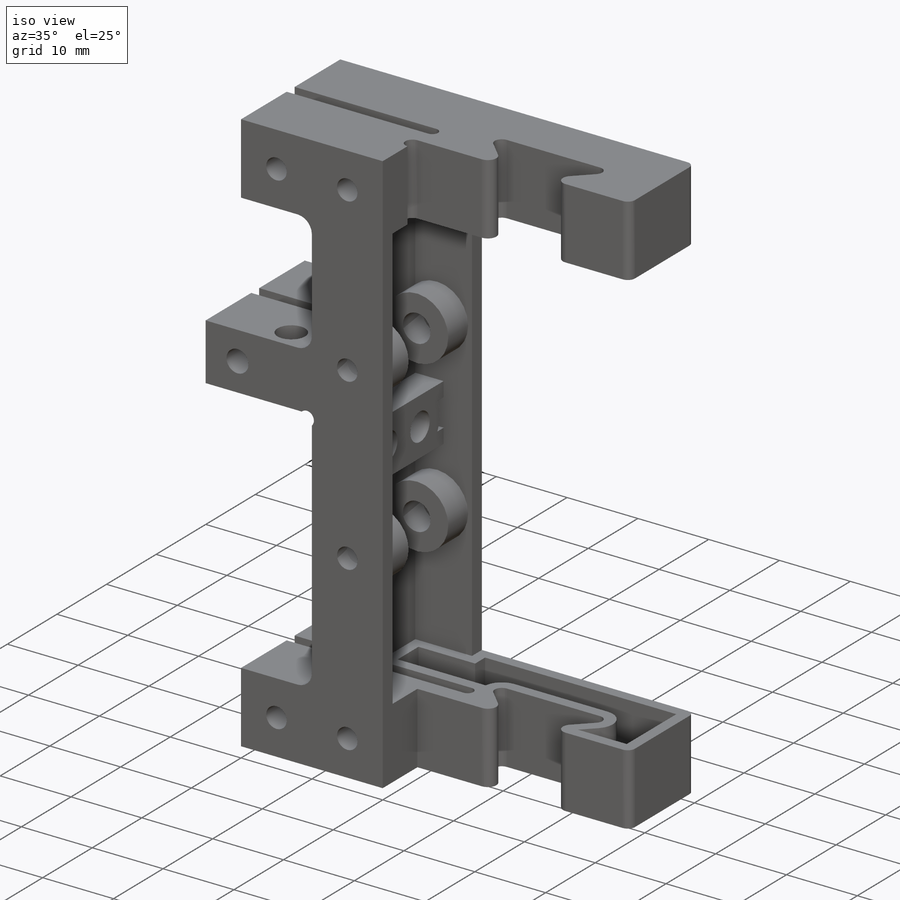
[diagram: iso view]
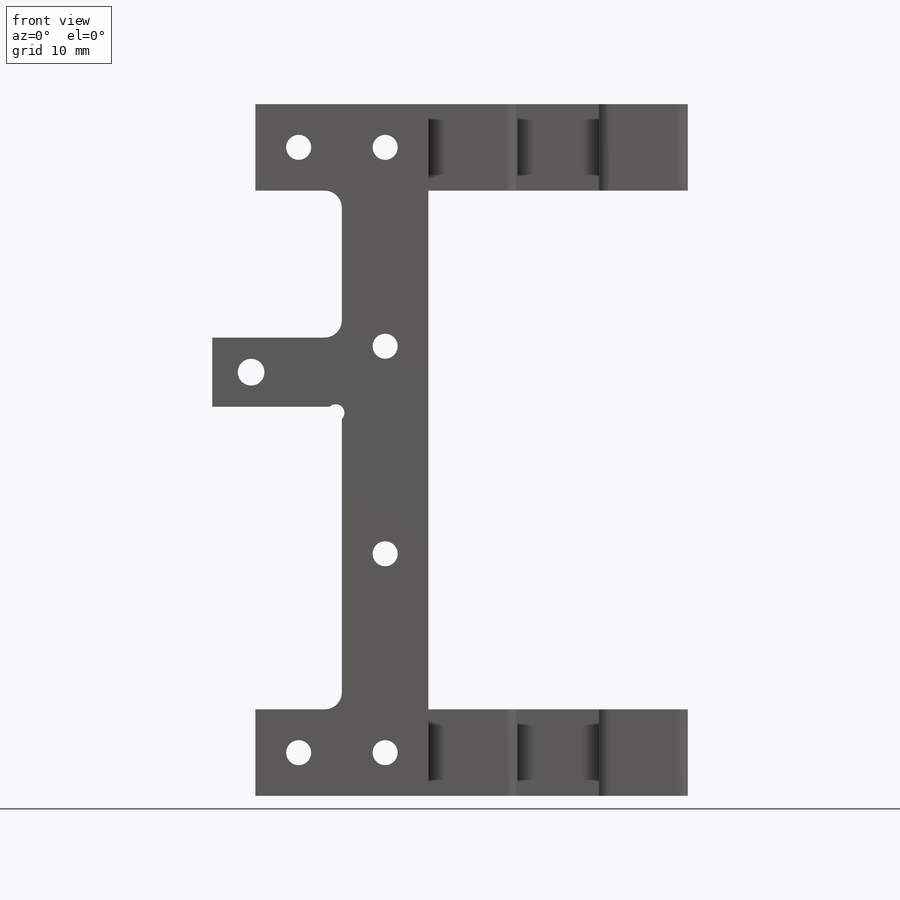
[diagram: front view]
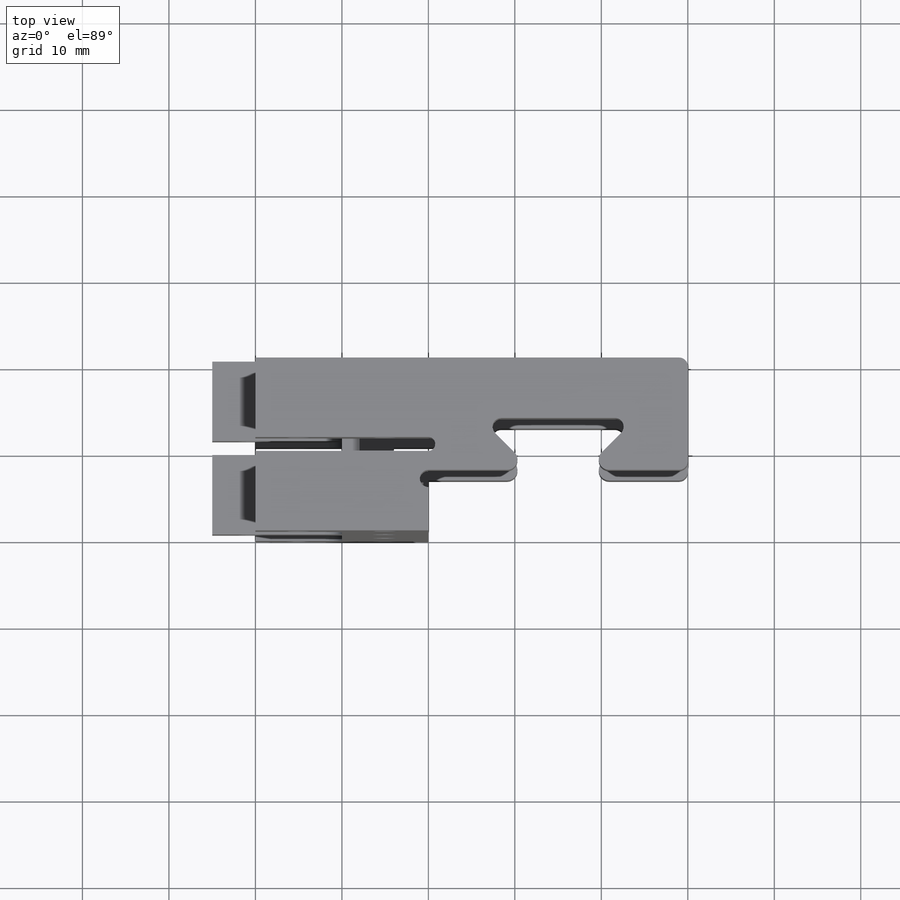
[diagram: top view]
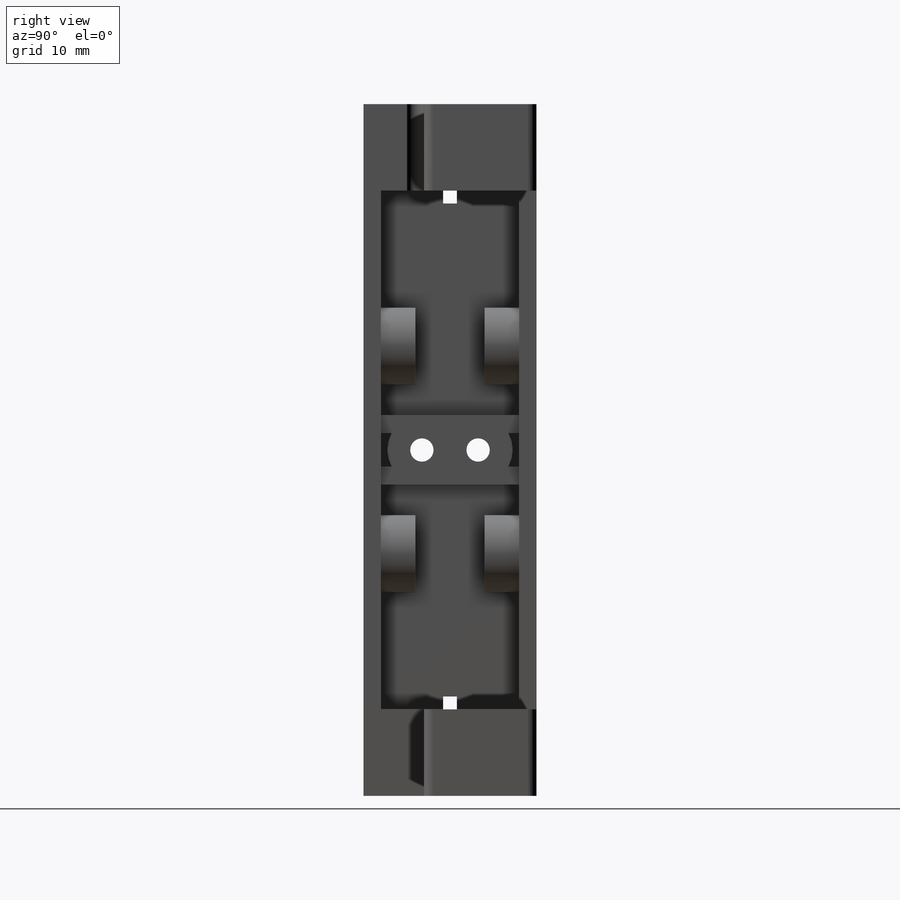
[diagram: right view]
SOLIDWORKS PART (.sldprt)
format: sldprt  version: not decoded by parser v0  size: 851,968 bytes
history: native  units: mm
features: sketch x26, cut_extrude x13, extrude x7, mirror x5, hole x3, plane x3, fillet x3, material x1 (+12 scaffold rows collapsed)
feature tree (73):
  scaffold x12  (default folders/planes/origin — collapsed)
  material  "ABS"
  sketch  "Sketch1"  dims[D1=20.0mm D2=10.0mm]
  extrude  "Boss-Extrude1"  Depth=10mm
  hole  "M2.5 Clearance Hole1"  Diameter=2.9mm Depth=20.00005mm
  sketch  "Sketch3"  dims[c1.D1=5.0mm c1.D2=10.0mm c2.D1=10.0mm]
  sketch  "Sketch2"  dims[hole-wizard template sketch: 60 standard entries collapsed; hole parameters kept: c18.Thru Hole Depth=~20.00005mm]
  sketch  "Sketch6"  dims[D1=60.0mm]
  extrude  "Boss-Extrude2"  [1 undecoded]
  plane  "Plane1"
  mirror  "Mirror1"
  sketch  "Sketch4"
  cut_extrude  "Cut-Extrude1"  Depth=0.8mm
  sketch  "Sketch7"  dims[D1=10.0mm D2=25.0mm D3=8.0mm D4=15.0mm]
  extrude  "Boss-Extrude3"  [1 undecoded]
  sketch  "Sketch8"  dims[D1=10.0mm D2=2.0mm]
  cut_extrude  "Cut-Extrude3"  Depth=8mm
  sketch  "Sketch9"  dims[D1=2.0mm]
  cut_extrude  "Cut-Extrude4"  Depth=35mm
  fillet  "Fillet1"  Radius=2mm
  sketch  "Sketch11"  dims[D1=3.9mm D2=14.0mm D3=5.0mm]
  cut_extrude  "Cut-Extrude6"  Depth=4mm
  sketch  "Sketch12"  dims[D1=2.7mm]
  cut_extrude  "Cut-Extrude7"  Depth=9mm
  sketch  "Sketch13"  dims[c1.D2=~3.059176mm c1.D3=2.7mm c1.D1=5.0mm c2.D2=6.5mm]
  cut_extrude  "Cut-Extrude8"  Depth=9mm
  sketch  "Sketch14"  dims[D1=3.9mm D2=8.0mm]
  extrude  "Boss-Extrude4"  Depth=4mm
  mirror  "Mirror2"
  sketch  "Sketch15"
  extrude  "Boss-Extrude5"  [1 undecoded]
  hole  "M2.5 Clearance Hole2"  Diameter=2.9mm Depth=20mm
  sketch  "Sketch17"  dims[D1=23.0mm]
  sketch  "Sketch16"  dims[hole-wizard template sketch: 47 standard entries collapsed; hole parameters kept: c15.Hole Depth=20.0mm c15.D3=~14.816244mm c15.Drill Angle=180.0deg]
  sketch  "Sketch19"  dims[D1=3.9mm D2=2.5mm]
  extrude  "Boss-Extrude6"  Depth=4mm
  mirror  "Mirror3"
  plane  "Plane2"
  mirror  "Mirror4"
  sketch  "Sketch20"  dims[D1=10.0mm]
  cut_extrude  "Cut-Extrude9"  Depth=128mm
  hole  "M2.5 Clearance Hole3"  Diameter=3.1mm Depth=20mm
  sketch  "Sketch22"  dims[D1=4.5mm]
  sketch  "Sketch23"  dims[hole-wizard template sketch: 60 standard entries collapsed; hole parameters kept: c18.Thru Hole Depth=20.0mm]
  sketch  "Sketch24"  dims[D1=1.5mm]
  cut_extrude  "Cut-Extrude10"  Depth=20mm
  sketch  "Sketch25"  dims[D1=45.0deg]
  extrude  "Boss-Extrude7"  Depth=10mm
  fillet  "Fillet2"  Radius=1mm
  fillet  "Fillet3"  Radius=1.2mm
  sketch  "Sketch27"  dims[D1=2.0mm]
  cut_extrude  "Cut-Extrude11"  Depth=10mm
  sketch  "Sketch28"  dims[D1=0.0mm D2=1.5mm]
  cut_extrude  "Cut-Extrude12"  Depth=8.5mm
  plane  "Plane3"
  mirror  "Mirror5"
  sketch  "Sketch30"  dims[D1=5.0mm]
  cut_extrude  "Cut-Extrude13"  Depth=10.5mm
  sketch  "Sketch31"
  cut_extrude  "Cut-Extrude14"  Depth=10mm
  sketch  "Sketch32"  dims[D1=0.0mm D2=1.5mm]
  cut_extrude  "Cut-Extrude15"  Depth=8.5mm
decode coverage: 46 of 57 modeling features carry decoded parameters
note: ~ marks probable driven/reference dimensions
note: 3 parameter values undecoded
summary: no parameter record found for 3 features
note: suppression state not decoded; provenance and decode notes live in map.json
